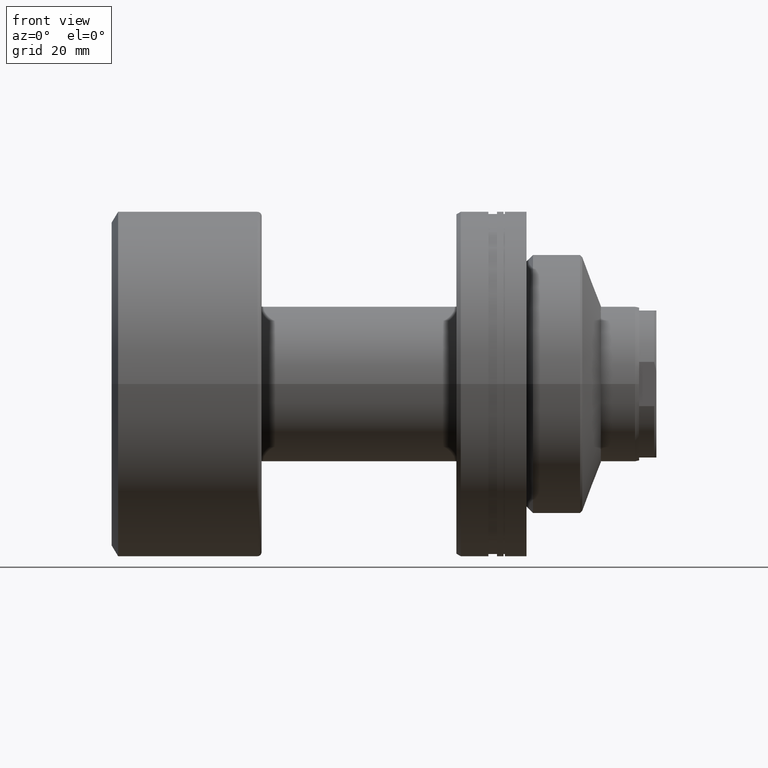
[diagram: clean part render]
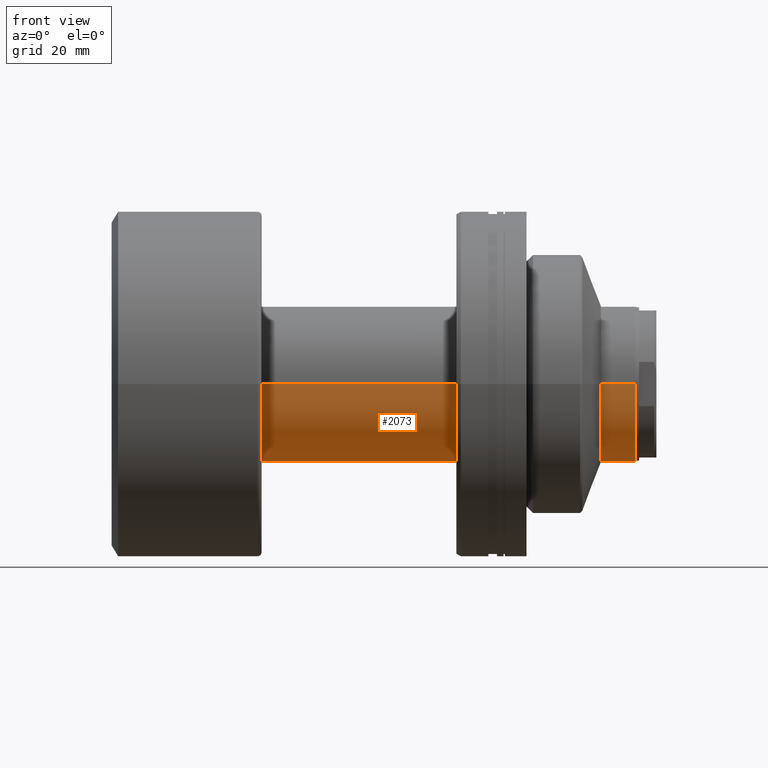
[diagram: same view with one face highlighted and labeled with its STEP entity id]
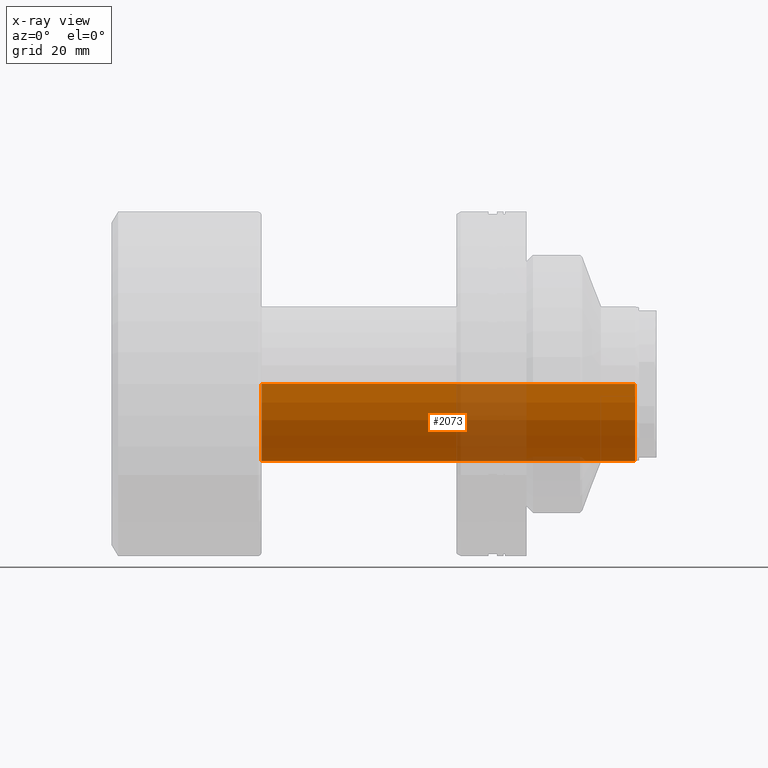
[diagram: x-ray of the same camera — body ghosted, the highlighted face saturated]
A machine part, front view. The second image highlights one B-rep face of the part: STEP entity #2073.
The next image is the same camera in x-ray: the body ghosted, the highlighted face saturated — about 20% of this face is hidden behind the body in this view.
In plain terms, the highlighted cylindrical surface (partial cylindrical patch) has radius 18 mm, axis along (-1, -0, -0).
Its self-contained STEP definition (entity closure, byte-faithful):
#24 = LINE ( 'NONE', #735, #698 ) ;
#42 = EDGE_CURVE ( 'NONE', #2013, #1918, #2078, .T. ) ;
#157 = CYLINDRICAL_SURFACE ( 'NONE', #173, 18.00000000000009592 ) ;
#173 = AXIS2_PLACEMENT_3D ( 'NONE', #680, #292, #1412 ) ;
#182 = VECTOR ( 'NONE', #1564, 1000.000000000000000 ) ;
#292 = DIRECTION ( 'NONE',  ( -1.000000000000000000, -1.069542322069065801E-17, -0.000000000000000000 ) ) ;
#403 = DIRECTION ( 'NONE',  ( -1.000000000000000000, -1.069542322069065801E-17, -0.000000000000000000 ) ) ;
#412 = CARTESIAN_POINT ( 'NONE',  ( 34.70000000000000284, -18.00000000000000000, 0.000000000000000000 ) ) ;
#448 = CARTESIAN_POINT ( 'NONE',  ( -1.925176179724328764E-16, 18.00000000000009592, 2.204364238465247261E-15 ) ) ;
#470 = CARTESIAN_POINT ( 'NONE',  ( 121.0667575123237754, -18.00000000000019185, 0.000000000000000000 ) ) ;
#526 = CARTESIAN_POINT ( 'NONE',  ( 34.70000000000000284, 18.00000000000000000, 2.204364238465241739E-15 ) ) ;
#569 = AXIS2_PLACEMENT_3D ( 'NONE', #2194, #742, #1692 ) ;
#601 = ORIENTED_EDGE ( 'NONE', *, *, #1945, .F. ) ;
#652 = CIRCLE ( 'NONE', #1186, 18.00000000000000000 ) ;
#669 = VERTEX_POINT ( 'NONE', #470 ) ;
#680 = CARTESIAN_POINT ( 'NONE',  ( 0.000000000000000000, 0.000000000000000000, 0.000000000000000000 ) ) ;
#698 = VECTOR ( 'NONE', #1476, 1000.000000000000000 ) ;
#734 = ORIENTED_EDGE ( 'NONE', *, *, #2259, .T. ) ;
#735 = CARTESIAN_POINT ( 'NONE',  ( 1.925176179724328764E-16, -18.00000000000009592, 0.000000000000000000 ) ) ;
#742 = DIRECTION ( 'NONE',  ( -1.000000000000000000, -1.069542322069065801E-17, -0.000000000000000000 ) ) ;
#894 = DIRECTION ( 'NONE',  ( 0.000000000000000000, -1.000000000000000000, 0.000000000000000000 ) ) ;
#1186 = AXIS2_PLACEMENT_3D ( 'NONE', #1253, #403, #894 ) ;
#1244 = EDGE_CURVE ( 'NONE', #2013, #669, #1421, .T. ) ;
#1253 = CARTESIAN_POINT ( 'NONE',  ( 34.70000000000000284, 3.711311857579658694E-16, 0.000000000000000000 ) ) ;
#1373 = CARTESIAN_POINT ( 'NONE',  ( 121.0667575123237754, 18.00000000000019185, 2.204364238465259094E-15 ) ) ;
#1412 = DIRECTION ( 'NONE',  ( 1.069542322069065801E-17, -1.000000000000000000, 0.000000000000000000 ) ) ;
#1421 = CIRCLE ( 'NONE', #569, 18.00000000000019185 ) ;
#1458 = ORIENTED_EDGE ( 'NONE', *, *, #42, .F. ) ;
#1476 = DIRECTION ( 'NONE',  ( -1.000000000000000000, -1.069542322069065801E-17, -0.000000000000000000 ) ) ;
#1526 = VERTEX_POINT ( 'NONE', #412 ) ;
#1553 = ORIENTED_EDGE ( 'NONE', *, *, #1244, .T. ) ;
#1564 = DIRECTION ( 'NONE',  ( -1.000000000000000000, -1.069542322069065801E-17, -0.000000000000000000 ) ) ;
#1692 = DIRECTION ( 'NONE',  ( 0.000000000000000000, -1.000000000000000000, 0.000000000000000000 ) ) ;
#1918 = VERTEX_POINT ( 'NONE', #526 ) ;
#1945 = EDGE_CURVE ( 'NONE', #1918, #1526, #652, .T. ) ;
#2013 = VERTEX_POINT ( 'NONE', #1373 ) ;
#2073 = ADVANCED_FACE ( 'NONE', ( #2080 ), #157, .T. ) ;
#2078 = LINE ( 'NONE', #448, #182 ) ;
#2080 = FACE_OUTER_BOUND ( 'NONE', #2227, .T. ) ;
#2194 = CARTESIAN_POINT ( 'NONE',  ( 121.0667575123237754, 1.294860209551032895E-15, 0.000000000000000000 ) ) ;
#2227 = EDGE_LOOP ( 'NONE', ( #1458, #1553, #734, #601 ) ) ;
#2259 = EDGE_CURVE ( 'NONE', #669, #1526, #24, .T. ) ;